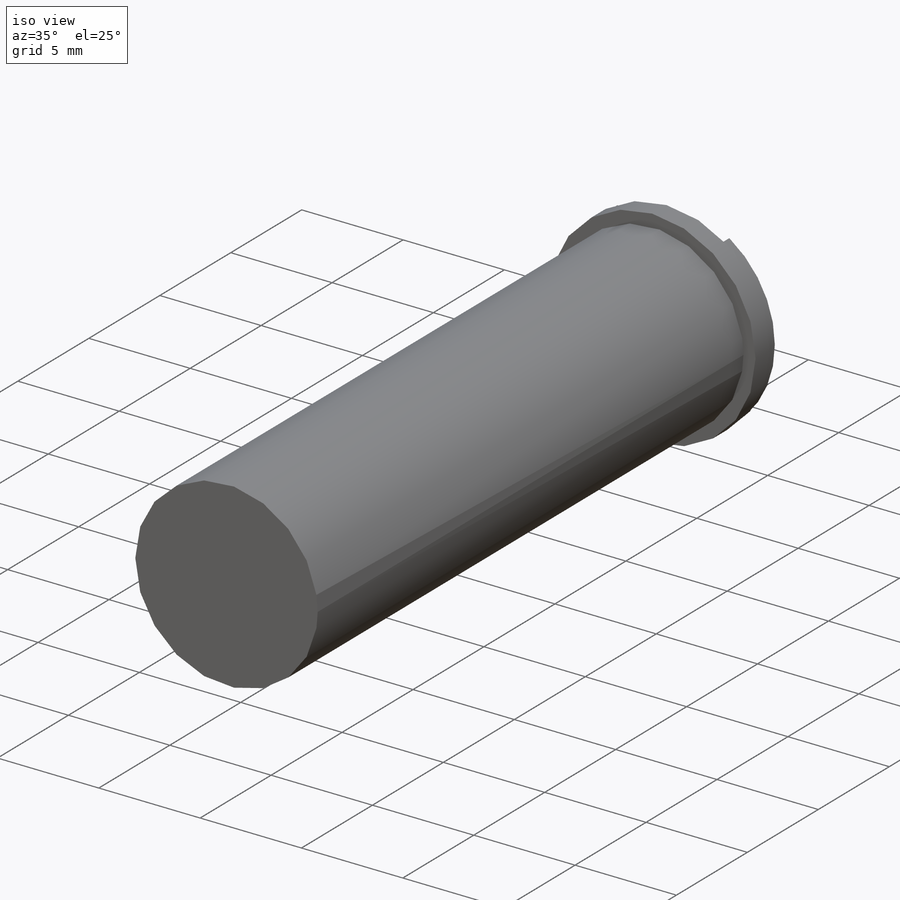
[diagram: iso view]
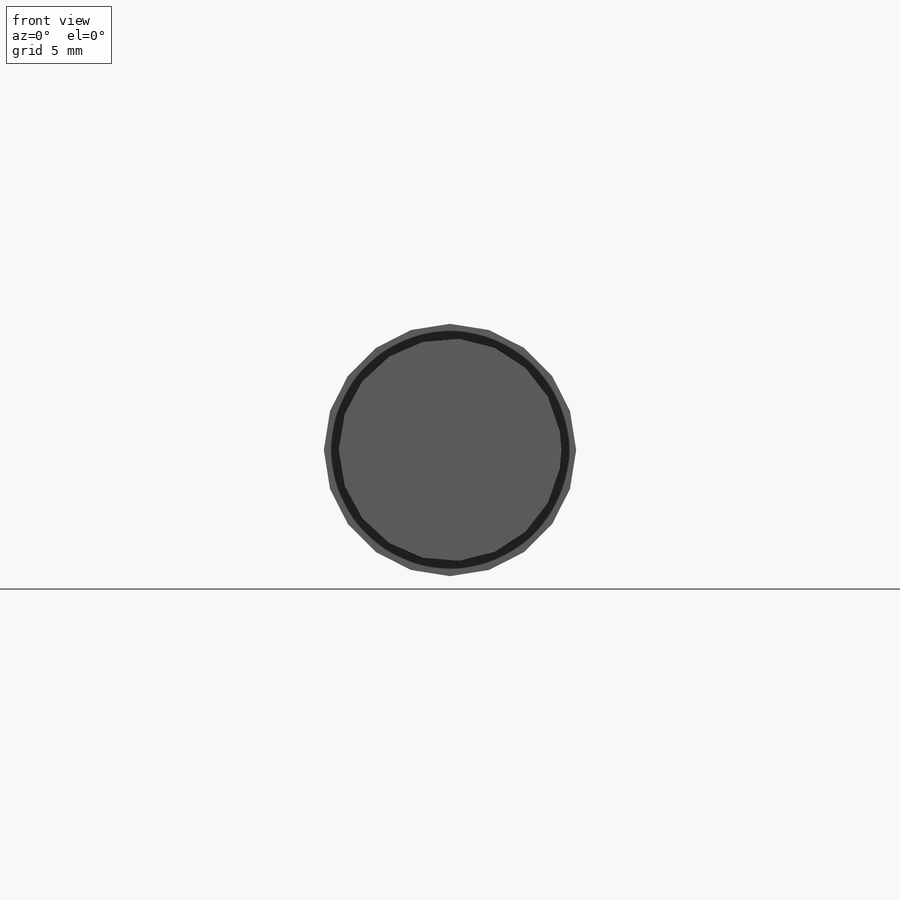
[diagram: front view]
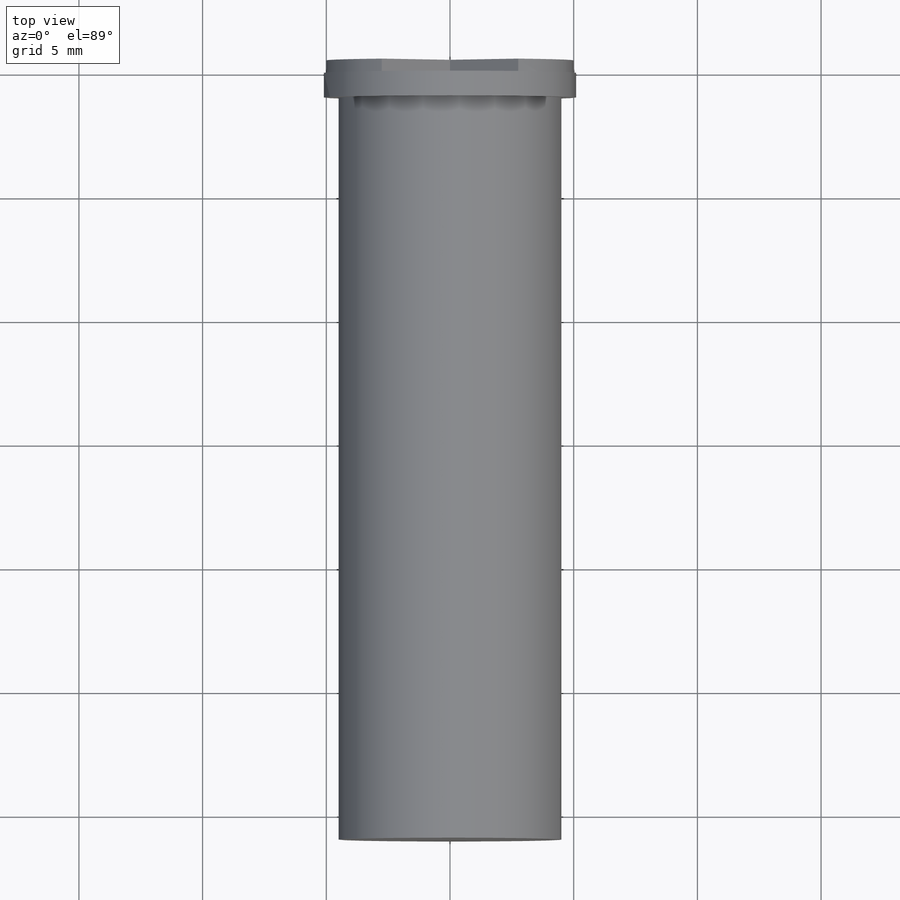
[diagram: top view]
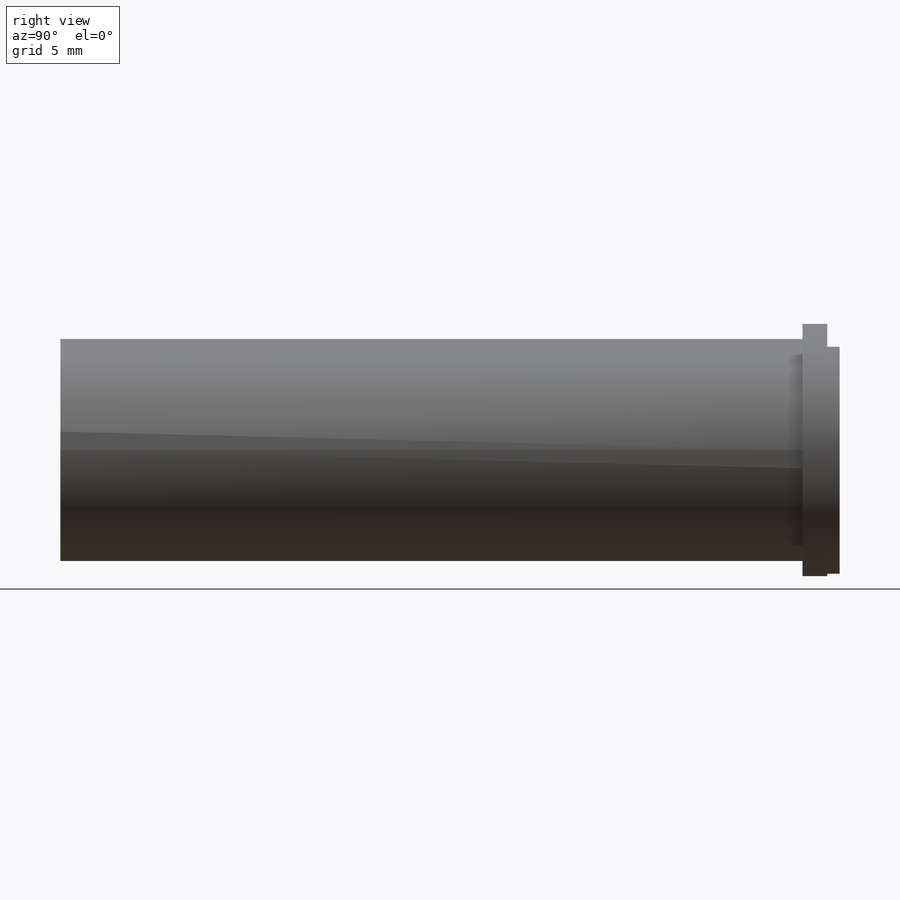
[diagram: right view]
SOLIDWORKS PART (.sldprt)
format: sldprt  version: not decoded by parser v0  size: 247,296 bytes
history: native  units: mm
features: plane x3, sketch x3, extrude x3, material x1 (+8 scaffold rows collapsed)
feature tree (18):
  scaffold x8  (default folders/planes/origin — collapsed)
  material  "Материал <не указан>"
  plane  "Спереди"
  plane  "Сверху"
  plane  "Справа"
  sketch  "Эскиз1"  dims[D1=10.2mm]
  extrude  "Бобышка-Вытянуть1"  Depth=1mm
  sketch  "Эскиз2"  dims[D1=9.0mm]
  extrude  "Бобышка-Вытянуть2"  Depth=30mm
  sketch  "Эскиз4"  dims[c1.D1=10.0mm c1.D2=8.0mm c1.D3=1.0mm c1.D4=1.0mm c1.D5=~5.166398mm c2.D5=45.0deg c2.D6=~3.292893mm c3.D6=45.0deg c3.D7=1.0mm c3.D8=0.5mm c3.D9=0.5mm]
  extrude  "Бобышка-Вытянуть3"  Depth=0.5mm
decode coverage: 6 of 6 modeling features carry decoded parameters
note: ~ marks probable driven/reference dimensions
note: suppression state not decoded; provenance and decode notes live in map.json
